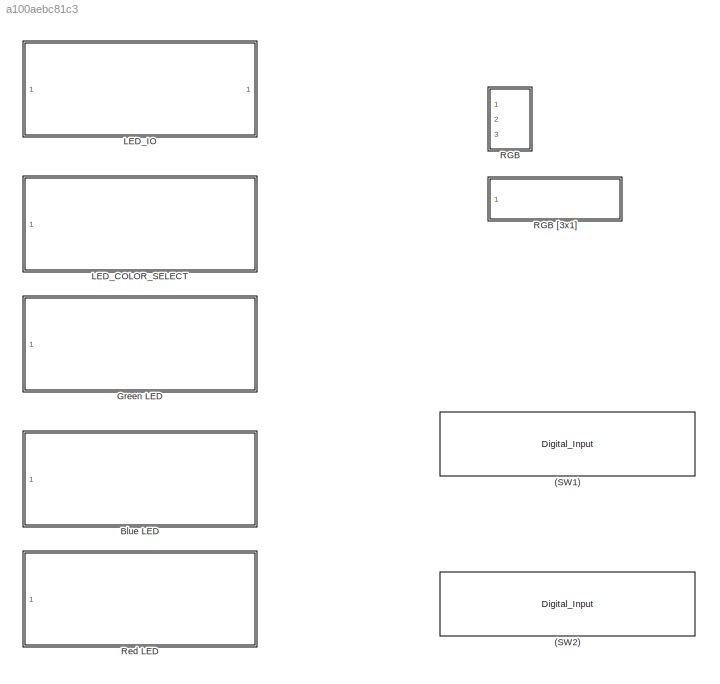
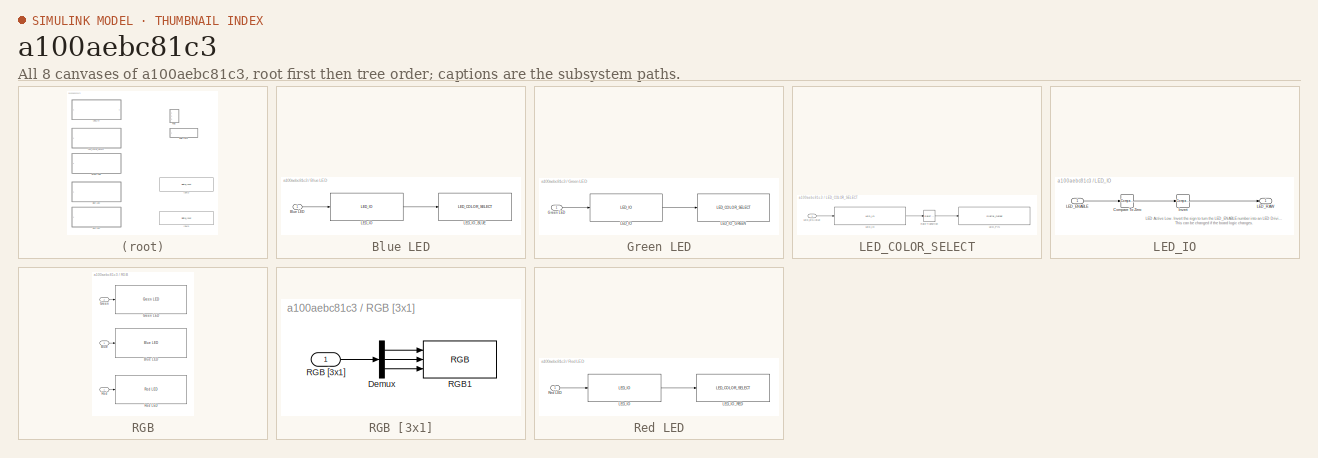
[diagram: thumbnail index - all 8 canvases of the model, root first then tree order]
MODEL slx_a100aebc81c3
KIND library
CONFIG AbsTol = auto
CONFIG EnableMultiTasking = off
CONFIG FixedStep = auto
CONFIG MaxStep = auto
CONFIG MinStep = auto
CONFIG RelTol = 1e-3
CONFIG SampleTimeConstraint = Unconstrained
CONFIG Solver = VariableStepAuto
CONFIG SolverName = VariableStepAuto
CONFIG StartTime = 0.0
CONFIG StopTime = 10.0
BLOCK [Reference] (SW1)   REF=mbd_pnt_ec_toolbox/MPC574xP/Peripheral Interface Blocks/Digital_Input
  Ports = [0, 1]
  SourceBlock = mbd_pnt_ec_toolbox/MPC574xP/Peripheral Interface Blocks/Digital_Input
  SourceType = GPIO_PNT_Input
BLOCK [Reference] (SW2)  REF=mbd_pnt_ec_toolbox/MPC574xP/Peripheral Interface Blocks/Digital_Input
  Ports = [0, 1]
  SourceBlock = mbd_pnt_ec_toolbox/MPC574xP/Peripheral Interface Blocks/Digital_Input
  SourceType = GPIO_PNT_Input
BLOCK [SubSystem] Blue LED
  Ports = [1]
  RequestExecContextInheritance = off
  Variant = off
BLOCK [Inport] Blue LED/Blue LED
  IconDisplay = Port number
BLOCK [Reference] Blue LED/LED_IO  REF=devkit_mpc5744p/LED_IO  (lib defined in slx_a100aebc81c3)
  Ports = [1, 1]
  SourceBlock = devkit_mpc5744p/LED_IO
BLOCK [Reference] Blue LED/LED_IO_BLUE  REF=devkit_mpc5744p/LED_COLOR_SELECT  (lib defined in slx_a100aebc81c3)
  Ports = [1]
  SourceBlock = devkit_mpc5744p/LED_COLOR_SELECT
  SourceType = LED_COLOR_SELECT
BLOCK [SubSystem] Green LED
  Ports = [1]
  RequestExecContextInheritance = off
  Variant = off
BLOCK [Inport] Green LED/Green LED
  IconDisplay = Port number
BLOCK [Reference] Green LED/LED_IO  REF=devkit_mpc5744p/LED_IO  (lib defined in slx_a100aebc81c3)
  Ports = [1, 1]
  SourceBlock = devkit_mpc5744p/LED_IO
BLOCK [Reference] Green LED/LED_IO_GREEN  REF=devkit_mpc5744p/LED_COLOR_SELECT  (lib defined in slx_a100aebc81c3)
  Ports = [1]
  SourceBlock = devkit_mpc5744p/LED_COLOR_SELECT
  SourceType = LED_COLOR_SELECT
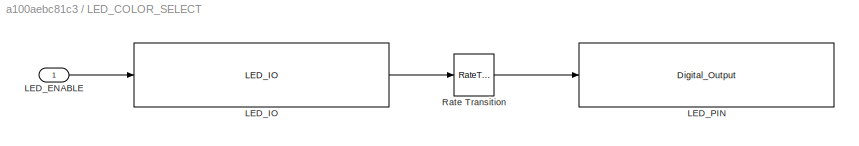
BLOCK [SubSystem] LED_COLOR_SELECT
  Ports = [1]
  RequestExecContextInheritance = off
  SystemSampleTime = 0.1
  TreatAsAtomicUnit = on
  Variant = off
BLOCK [Inport] LED_COLOR_SELECT/LED_ENABLE
  IconDisplay = Port number
BLOCK [Reference] LED_COLOR_SELECT/LED_IO  REF=devkit_mpc5744p/LED_IO  (lib defined in slx_a100aebc81c3)
  Ports = [1, 1]
  SourceBlock = devkit_mpc5744p/LED_IO
BLOCK [Reference] LED_COLOR_SELECT/LED_PIN  REF=mbd_pnt_ec_toolbox/MPC574xP/Peripheral Interface Blocks/Digital_Output
  Ports = [1]
  SourceBlock = mbd_pnt_ec_toolbox/MPC574xP/Peripheral Interface Blocks/Digital_Output
  SourceType = GPIO_PNT_Output
BLOCK [RateTransition] LED_COLOR_SELECT/Rate Transition
BLOCK [SubSystem] LED_IO
  Ports = [1, 1]
  RTWFcnNameOpts = Use subsystem name
  RTWFileNameOpts = Use subsystem name
  RTWSystemCode = Reusable function
  RequestExecContextInheritance = off
  TreatAsAtomicUnit = on
  Variant = off
BLOCK [Reference] LED_IO/Compare To Zero  REF=simulink/Logic and Bit
Operations/Compare
To Zero
  Ports = [1, 1]
  SourceBlock = simulink/Logic and Bit\nOperations/Compare\nTo Zero
  SourceType = Compare To Zero
BLOCK [Reference] LED_IO/Invert  REF=simulink/Logic and Bit
Operations/Compare
To Zero
  Ports = [1, 1]
  SourceBlock = simulink/Logic and Bit\nOperations/Compare\nTo Zero
  SourceType = Compare To Zero
BLOCK [Inport] LED_IO/LED_ENABLE
  IconDisplay = Port number
BLOCK [Outport] LED_IO/LED_RAW
  IconDisplay = Port number
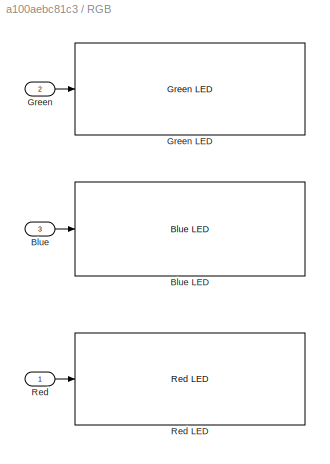
BLOCK [SubSystem] RGB
  Ports = [3]
  RequestExecContextInheritance = off
  Variant = off
BLOCK [SubSystem] RGB [3x1]
  Ports = [1]
  RequestExecContextInheritance = off
  Variant = off
BLOCK [Demux] RGB [3x1]/Demux
  DisplayOption = bar
  Outputs = 3
  Ports = [1, 3]
BLOCK [Inport] RGB [3x1]/RGB [3x1]
  IconDisplay = Port number
BLOCK [Reference] RGB [3x1]/RGB1  REF=devkit_mpc5744p/RGB  (lib defined in slx_a100aebc81c3)
  Ports = [3]
  SourceBlock = devkit_mpc5744p/RGB
  SourceType = SubSystem
BLOCK [Inport] RGB/Blue
  IconDisplay = Port number
  Port = 3
BLOCK [Reference] RGB/Blue LED  REF=devkit_mpc5744p/Blue LED  (lib defined in slx_a100aebc81c3)
  Ports = [1]
  SourceBlock = devkit_mpc5744p/Blue LED
  SourceType = SubSystem
BLOCK [Inport] RGB/Green
  IconDisplay = Port number
  Port = 2
BLOCK [Reference] RGB/Green LED  REF=devkit_mpc5744p/Green LED  (lib defined in slx_a100aebc81c3)
  Ports = [1]
  SourceBlock = devkit_mpc5744p/Green LED
  SourceType = SubSystem
BLOCK [Inport] RGB/Red
  IconDisplay = Port number
BLOCK [Reference] RGB/Red LED  REF=devkit_mpc5744p/Red LED  (lib defined in slx_a100aebc81c3)
  Ports = [1]
  SourceBlock = devkit_mpc5744p/Red LED
  SourceType = SubSystem
BLOCK [SubSystem] Red LED
  Ports = [1]
  RequestExecContextInheritance = off
  Variant = off
BLOCK [Reference] Red LED/LED_IO  REF=devkit_mpc5744p/LED_IO  (lib defined in slx_a100aebc81c3)
  Ports = [1, 1]
  SourceBlock = devkit_mpc5744p/LED_IO
BLOCK [Reference] Red LED/LED_IO_RED  REF=devkit_mpc5744p/LED_COLOR_SELECT  (lib defined in slx_a100aebc81c3)
  Ports = [1]
  SourceBlock = devkit_mpc5744p/LED_COLOR_SELECT
  SourceType = LED_COLOR_SELECT
BLOCK [Inport] Red LED/Red LED
  IconDisplay = Port number
ANNOTATION LED_IO: LED Active Low. Invert the sign to turn the LED_ENABLE number into an LED Driving Signal. This can be changed if the board logic changes.
LINE Blue LED/Blue LED:1 -> Blue LED/LED_IO:1
LINE Blue LED/LED_IO:1 -> Blue LED/LED_IO_BLUE:1
LINE Green LED/Green LED:1 -> Green LED/LED_IO:1
LINE Green LED/LED_IO:1 -> Green LED/LED_IO_GREEN:1
LINE LED_IO/Compare To Zero:1 -> LED_IO/Invert:1
LINE LED_IO/Invert:1 -> LED_IO/LED_RAW:1
LINE LED_IO/LED_ENABLE:1 -> LED_IO/Compare To Zero:1
LINE RGB [3x1]/Demux:1 -> RGB [3x1]/RGB1:1
LINE RGB [3x1]/Demux:2 -> RGB [3x1]/RGB1:2
LINE RGB [3x1]/Demux:3 -> RGB [3x1]/RGB1:3
LINE RGB [3x1]/RGB [3x1]:1 -> RGB [3x1]/Demux:1
LINE RGB/Blue:1 -> RGB/Blue LED:1
LINE RGB/Green:1 -> RGB/Green LED:1
LINE RGB/Red:1 -> RGB/Red LED:1
LINE Red LED/LED_IO:1 -> Red LED/LED_IO_RED:1
LINE Red LED/Red LED:1 -> Red LED/LED_IO:1
